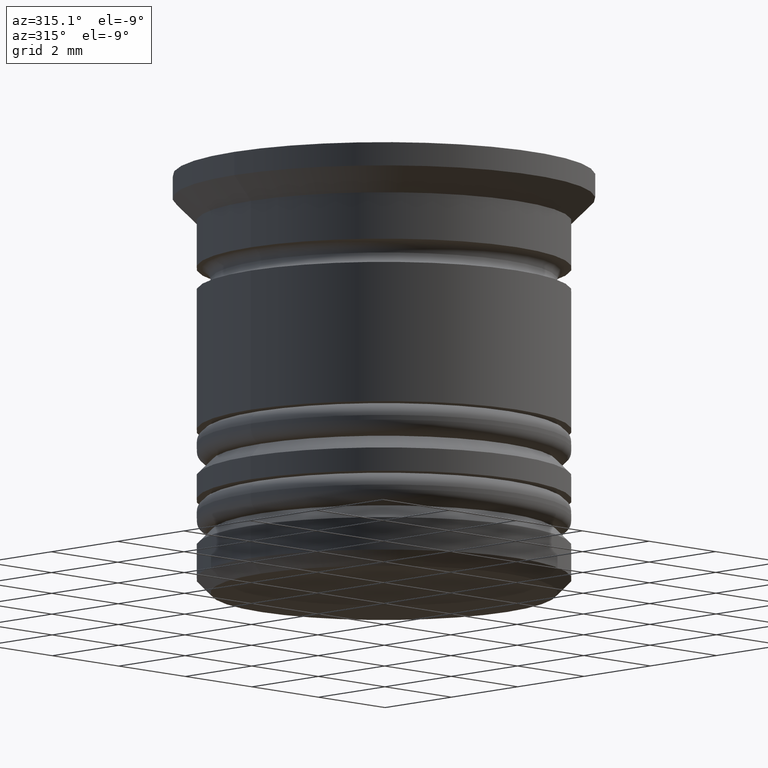
[diagram: clean part render]
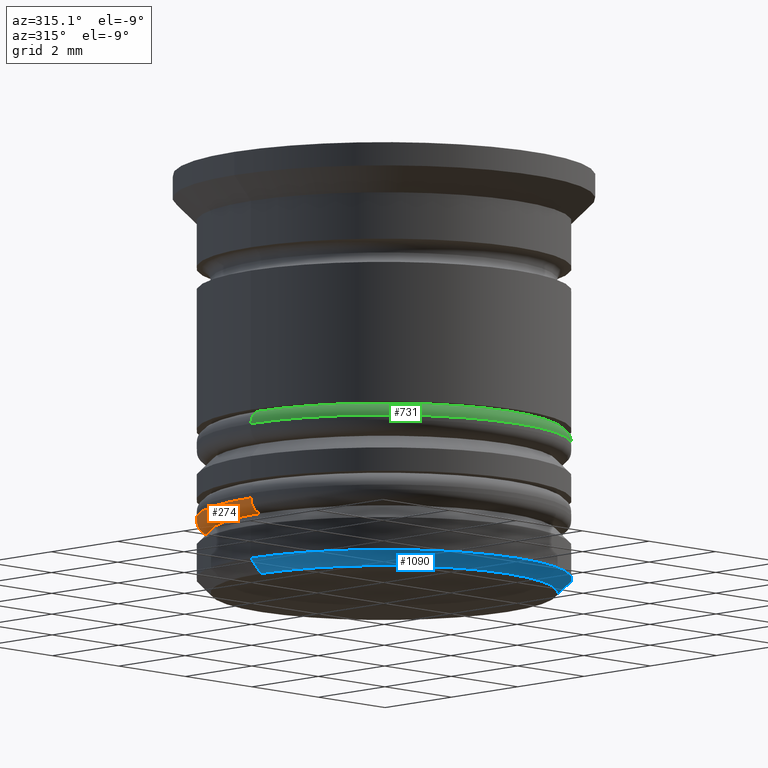
[diagram: same view with three faces highlighted in distinct colors, each labeled with its STEP entity id]
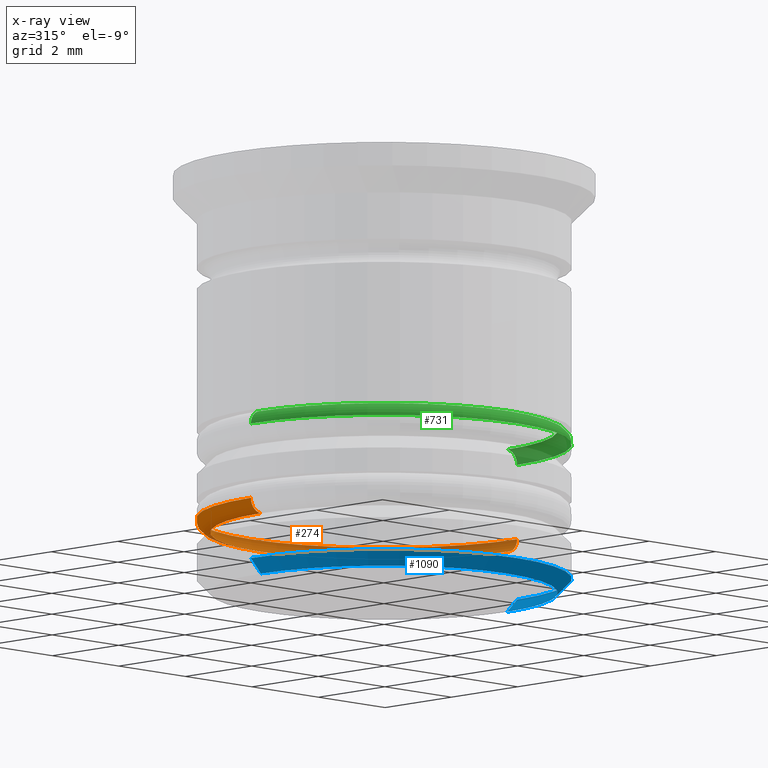
[diagram: x-ray of the same camera — body ghosted, the three highlighted faces saturated]
A machine part, auxiliary view with three faces highlighted in distinct colors.
The next image is the same camera in x-ray (body ghosted, the three faces saturated) — at least one of them is partly hidden behind the body in this view.
Their STEP definitions:

[orange] entity #274 — the highlighted toroidal blend (fillet) surface has major radius 3.7 mm and minor (blend) radius 0.3 mm.
#11 = CARTESIAN_POINT ( 'NONE',  ( 0.000000000000000000, 0.000000000000000000, -7.400000000000005684 ) ) ;
#29 = CARTESIAN_POINT ( 'NONE',  ( -3.700000000000001954, 4.531193156845209159E-16, -7.400000000000005684 ) ) ;
#55 = CARTESIAN_POINT ( 'NONE',  ( 3.700000000000001954, 0.000000000000000000, -7.400000000000005684 ) ) ;
#206 = AXIS2_PLACEMENT_3D ( 'NONE', #55, #683, #1298 ) ;
#274 = ADVANCED_FACE ( 'NONE', ( #316 ), #1536, .T. ) ;
#288 = AXIS2_PLACEMENT_3D ( 'NONE', #1465, #1472, #1422 ) ;
#316 = FACE_OUTER_BOUND ( 'NONE', #722, .T. ) ;
#338 = CARTESIAN_POINT ( 'NONE',  ( -3.700000000000001954, 4.714890176717312473E-16, -7.700000000000005507 ) ) ;
#362 = CIRCLE ( 'NONE', #557, 3.700000000000001954 ) ;
#482 = CIRCLE ( 'NONE', #1175, 0.2999999999999999334 ) ;
#498 = CARTESIAN_POINT ( 'NONE',  ( 4.000000000000001776, 0.000000000000000000, -7.400000000000005684 ) ) ;
#501 = CARTESIAN_POINT ( 'NONE',  ( 0.000000000000000000, 0.000000000000000000, -7.700000000000005507 ) ) ;
#557 = AXIS2_PLACEMENT_3D ( 'NONE', #501, #1588, #634 ) ;
#585 = EDGE_CURVE ( 'NONE', #812, #804, #1610, .T. ) ;
#617 = ORIENTED_EDGE ( 'NONE', *, *, #1005, .F. ) ;
#634 = DIRECTION ( 'NONE',  ( 1.000000000000000000, 0.000000000000000000, 0.000000000000000000 ) ) ;
#638 = DIRECTION ( 'NONE',  ( 0.000000000000000000, 0.000000000000000000, 1.000000000000000000 ) ) ;
#683 = DIRECTION ( 'NONE',  ( 0.000000000000000000, -1.000000000000000000, 0.000000000000000000 ) ) ;
#722 = EDGE_LOOP ( 'NONE', ( #1851, #1774, #1797, #617 ) ) ;
#804 = VERTEX_POINT ( 'NONE', #1850 ) ;
#812 = VERTEX_POINT ( 'NONE', #498 ) ;
#889 = CIRCLE ( 'NONE', #206, 0.2999999999999999334 ) ;
#1005 = EDGE_CURVE ( 'NONE', #1293, #812, #889, .T. ) ;
#1009 = CARTESIAN_POINT ( 'NONE',  ( 3.700000000000001954, 0.000000000000000000, -7.700000000000005507 ) ) ;
#1049 = EDGE_CURVE ( 'NONE', #1126, #804, #482, .T. ) ;
#1126 = VERTEX_POINT ( 'NONE', #338 ) ;
#1132 = EDGE_CURVE ( 'NONE', #1126, #1293, #362, .T. ) ;
#1133 = DIRECTION ( 'NONE',  ( 1.224646799147353207E-16, 1.000000000000000000, -0.000000000000000000 ) ) ;
#1175 = AXIS2_PLACEMENT_3D ( 'NONE', #29, #1133, #1770 ) ;
#1259 = DIRECTION ( 'NONE',  ( 1.000000000000000000, 0.000000000000000000, 0.000000000000000000 ) ) ;
#1293 = VERTEX_POINT ( 'NONE', #1009 ) ;
#1298 = DIRECTION ( 'NONE',  ( 0.000000000000000000, 0.000000000000000000, -1.000000000000000000 ) ) ;
#1422 = DIRECTION ( 'NONE',  ( 1.000000000000000000, 0.000000000000000000, 0.000000000000000000 ) ) ;
#1465 = CARTESIAN_POINT ( 'NONE',  ( 0.000000000000000000, 0.000000000000000000, -7.400000000000005684 ) ) ;
#1472 = DIRECTION ( 'NONE',  ( 0.000000000000000000, 0.000000000000000000, 1.000000000000000000 ) ) ;
#1536 = TOROIDAL_SURFACE ( 'NONE', #1838, 3.700000000000001954, 0.2999999999999999889 ) ;
#1588 = DIRECTION ( 'NONE',  ( -0.000000000000000000, -0.000000000000000000, -1.000000000000000000 ) ) ;
#1610 = CIRCLE ( 'NONE', #288, 4.000000000000001776 ) ;
#1770 = DIRECTION ( 'NONE',  ( -1.000000000000000000, 1.224646799147353207E-16, 0.000000000000000000 ) ) ;
#1774 = ORIENTED_EDGE ( 'NONE', *, *, #1049, .T. ) ;
#1797 = ORIENTED_EDGE ( 'NONE', *, *, #585, .F. ) ;
#1838 = AXIS2_PLACEMENT_3D ( 'NONE', #11, #638, #1259 ) ;
#1850 = CARTESIAN_POINT ( 'NONE',  ( -4.000000000000001776, 4.898587196589415787E-16, -7.400000000000005684 ) ) ;
#1851 = ORIENTED_EDGE ( 'NONE', *, *, #1132, .F. ) ;

[blue] entity #1090 — the highlighted conical surface has half-angle 45 deg.
#18 = EDGE_CURVE ( 'NONE', #1555, #1706, #1795, .T. ) ;
#21 = LINE ( 'NONE', #1427, #915 ) ;
#175 = CARTESIAN_POINT ( 'NONE',  ( 0.000000000000000000, 0.000000000000000000, -8.700000000000001066 ) ) ;
#178 = EDGE_LOOP ( 'NONE', ( #923, #1583, #964, #342 ) ) ;
#181 = EDGE_CURVE ( 'NONE', #664, #1706, #1809, .T. ) ;
#279 = DIRECTION ( 'NONE',  ( -1.000000000000000000, 0.000000000000000000, 0.000000000000000000 ) ) ;
#342 = ORIENTED_EDGE ( 'NONE', *, *, #181, .F. ) ;
#391 = DIRECTION ( 'NONE',  ( 0.7071067811865495711, 0.000000000000000000, 0.7071067811865455743 ) ) ;
#416 = VECTOR ( 'NONE', #391, 1000.000000000000114 ) ;
#458 = CARTESIAN_POINT ( 'NONE',  ( 0.000000000000000000, 0.000000000000000000, -8.999999999999998224 ) ) ;
#527 = CARTESIAN_POINT ( 'NONE',  ( 3.700000000000002842, 0.000000000000000000, -8.999999999999998224 ) ) ;
#596 = CARTESIAN_POINT ( 'NONE',  ( -4.000000000000000888, 4.898587196589413815E-16, -8.700000000000001066 ) ) ;
#618 = DIRECTION ( 'NONE',  ( -1.000000000000000000, 0.000000000000000000, 0.000000000000000000 ) ) ;
#664 = VERTEX_POINT ( 'NONE', #596 ) ;
#793 = CARTESIAN_POINT ( 'NONE',  ( 0.000000000000000000, 0.000000000000000000, -8.700000000000001066 ) ) ;
#821 = DIRECTION ( 'NONE',  ( -0.7071067811865495711, 8.659560562354957510E-17, 0.7071067811865455743 ) ) ;
#888 = AXIS2_PLACEMENT_3D ( 'NONE', #458, #1719, #279 ) ;
#910 = AXIS2_PLACEMENT_3D ( 'NONE', #793, #1412, #618 ) ;
#915 = VECTOR ( 'NONE', #821, 1000.000000000000114 ) ;
#923 = ORIENTED_EDGE ( 'NONE', *, *, #1869, .F. ) ;
#964 = ORIENTED_EDGE ( 'NONE', *, *, #18, .T. ) ;
#1018 = CARTESIAN_POINT ( 'NONE',  ( -3.700000000000002842, 4.714890176717312473E-16, -8.999999999999998224 ) ) ;
#1019 = CIRCLE ( 'NONE', #888, 3.700000000000002842 ) ;
#1090 = ADVANCED_FACE ( 'NONE', ( #1399 ), #1233, .T. ) ;
#1233 = CONICAL_SURFACE ( 'NONE', #1446, 4.000000000000000888, 0.7853981633974511656 ) ;
#1280 = DIRECTION ( 'NONE',  ( -0.000000000000000000, -0.000000000000000000, 1.000000000000000000 ) ) ;
#1399 = FACE_OUTER_BOUND ( 'NONE', #178, .T. ) ;
#1412 = DIRECTION ( 'NONE',  ( -0.000000000000000000, -0.000000000000000000, 1.000000000000000000 ) ) ;
#1427 = CARTESIAN_POINT ( 'NONE',  ( -4.000000000000000888, 4.898587196589413815E-16, -8.700000000000001066 ) ) ;
#1446 = AXIS2_PLACEMENT_3D ( 'NONE', #175, #1280, #1895 ) ;
#1518 = CARTESIAN_POINT ( 'NONE',  ( 4.000000000000000888, 0.000000000000000000, -8.700000000000001066 ) ) ;
#1555 = VERTEX_POINT ( 'NONE', #527 ) ;
#1583 = ORIENTED_EDGE ( 'NONE', *, *, #1854, .F. ) ;
#1634 = VERTEX_POINT ( 'NONE', #1018 ) ;
#1706 = VERTEX_POINT ( 'NONE', #1518 ) ;
#1719 = DIRECTION ( 'NONE',  ( 0.000000000000000000, 0.000000000000000000, -1.000000000000000000 ) ) ;
#1771 = CARTESIAN_POINT ( 'NONE',  ( 4.000000000000000888, 0.000000000000000000, -8.700000000000001066 ) ) ;
#1795 = LINE ( 'NONE', #1771, #416 ) ;
#1809 = CIRCLE ( 'NONE', #910, 4.000000000000000888 ) ;
#1854 = EDGE_CURVE ( 'NONE', #1555, #1634, #1019, .T. ) ;
#1869 = EDGE_CURVE ( 'NONE', #1634, #664, #21, .T. ) ;
#1895 = DIRECTION ( 'NONE',  ( 1.000000000000000000, 0.000000000000000000, 0.000000000000000000 ) ) ;

[green] entity #731 — the highlighted toroidal blend (fillet) surface has major radius 3.7 mm and minor (blend) radius 0.3 mm.
#6 = CARTESIAN_POINT ( 'NONE',  ( -4.000000000000000888, 4.898587196589413815E-16, -5.799999999999999822 ) ) ;
#22 = ORIENTED_EDGE ( 'NONE', *, *, #845, .F. ) ;
#88 = DIRECTION ( 'NONE',  ( 0.000000000000000000, 0.000000000000000000, -1.000000000000000000 ) ) ;
#130 = EDGE_CURVE ( 'NONE', #1889, #1635, #558, .T. ) ;
#244 = CARTESIAN_POINT ( 'NONE',  ( 0.000000000000000000, 0.000000000000000000, -5.500000000000000000 ) ) ;
#319 = DIRECTION ( 'NONE',  ( -1.000000000000000000, 0.000000000000000000, 0.000000000000000000 ) ) ;
#332 = AXIS2_PLACEMENT_3D ( 'NONE', #244, #405, #319 ) ;
#405 = DIRECTION ( 'NONE',  ( -0.000000000000000000, -0.000000000000000000, 1.000000000000000000 ) ) ;
#406 = CARTESIAN_POINT ( 'NONE',  ( 4.000000000000000888, 0.000000000000000000, -5.799999999999999822 ) ) ;
#558 = CIRCLE ( 'NONE', #1205, 0.2999999999999999334 ) ;
#570 = DIRECTION ( 'NONE',  ( -1.000000000000000000, 0.000000000000000000, 0.000000000000000000 ) ) ;
#576 = CARTESIAN_POINT ( 'NONE',  ( -3.700000000000001066, 0.000000000000000000, -5.500000000000000000 ) ) ;
#647 = CARTESIAN_POINT ( 'NONE',  ( 3.700000000000001066, 4.714890176717310501E-16, -5.500000000000000000 ) ) ;
#682 = EDGE_LOOP ( 'NONE', ( #2023, #22, #1257, #1678 ) ) ;
#710 = CARTESIAN_POINT ( 'NONE',  ( -3.700000000000001066, 0.000000000000000000, -5.799999999999999822 ) ) ;
#731 = ADVANCED_FACE ( 'NONE', ( #1211 ), #1814, .T. ) ;
#845 = EDGE_CURVE ( 'NONE', #1605, #1889, #1840, .T. ) ;
#871 = DIRECTION ( 'NONE',  ( 0.000000000000000000, 0.000000000000000000, -1.000000000000000000 ) ) ;
#908 = AXIS2_PLACEMENT_3D ( 'NONE', #1810, #88, #1302 ) ;
#1034 = DIRECTION ( 'NONE',  ( -1.000000000000000000, -1.224646799147353207E-16, 0.000000000000000000 ) ) ;
#1174 = DIRECTION ( 'NONE',  ( -0.000000000000000000, -1.000000000000000000, -0.000000000000000000 ) ) ;
#1193 = EDGE_CURVE ( 'NONE', #1605, #1899, #1345, .T. ) ;
#1204 = CIRCLE ( 'NONE', #908, 4.000000000000000888 ) ;
#1205 = AXIS2_PLACEMENT_3D ( 'NONE', #1362, #1991, #1034 ) ;
#1211 = FACE_OUTER_BOUND ( 'NONE', #682, .T. ) ;
#1219 = DIRECTION ( 'NONE',  ( 0.000000000000000000, 0.000000000000000000, -1.000000000000000000 ) ) ;
#1225 = EDGE_CURVE ( 'NONE', #1635, #1899, #1204, .T. ) ;
#1257 = ORIENTED_EDGE ( 'NONE', *, *, #1193, .T. ) ;
#1302 = DIRECTION ( 'NONE',  ( -1.000000000000000000, 0.000000000000000000, 0.000000000000000000 ) ) ;
#1345 = CIRCLE ( 'NONE', #1832, 0.2999999999999999334 ) ;
#1362 = CARTESIAN_POINT ( 'NONE',  ( 3.700000000000001066, 4.531193156845208173E-16, -5.799999999999999822 ) ) ;
#1605 = VERTEX_POINT ( 'NONE', #576 ) ;
#1635 = VERTEX_POINT ( 'NONE', #406 ) ;
#1678 = ORIENTED_EDGE ( 'NONE', *, *, #1225, .F. ) ;
#1810 = CARTESIAN_POINT ( 'NONE',  ( 0.000000000000000000, 0.000000000000000000, -5.799999999999999822 ) ) ;
#1814 = TOROIDAL_SURFACE ( 'NONE', #2002, 3.700000000000001066, 0.2999999999999999889 ) ;
#1832 = AXIS2_PLACEMENT_3D ( 'NONE', #710, #1174, #871 ) ;
#1840 = CIRCLE ( 'NONE', #332, 3.700000000000001066 ) ;
#1889 = VERTEX_POINT ( 'NONE', #647 ) ;
#1899 = VERTEX_POINT ( 'NONE', #6 ) ;
#1983 = CARTESIAN_POINT ( 'NONE',  ( 0.000000000000000000, 0.000000000000000000, -5.799999999999999822 ) ) ;
#1991 = DIRECTION ( 'NONE',  ( -1.224646799147353207E-16, 1.000000000000000000, 0.000000000000000000 ) ) ;
#2002 = AXIS2_PLACEMENT_3D ( 'NONE', #1983, #1219, #570 ) ;
#2023 = ORIENTED_EDGE ( 'NONE', *, *, #130, .F. ) ;